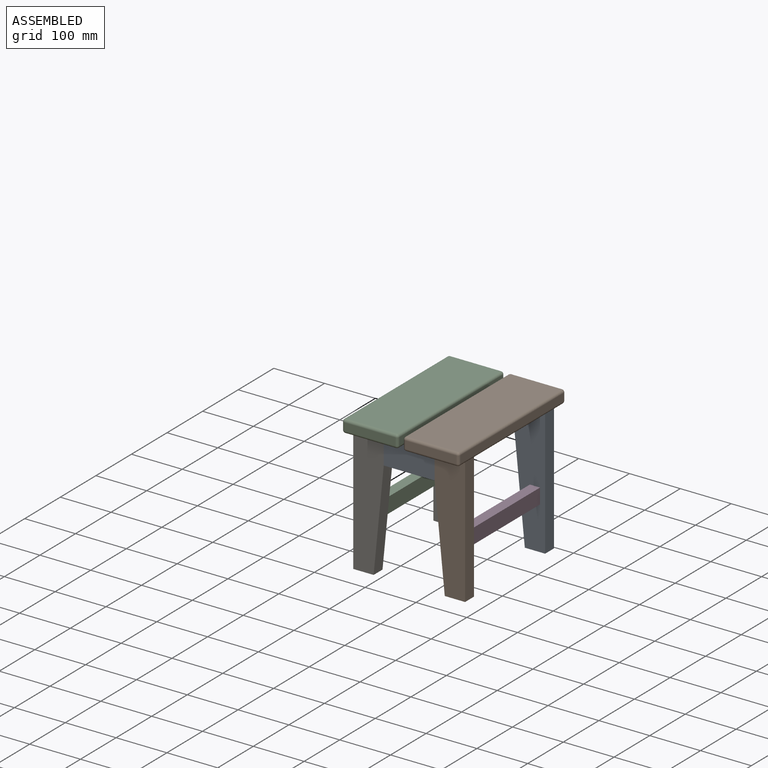
[diagram: assembled view]
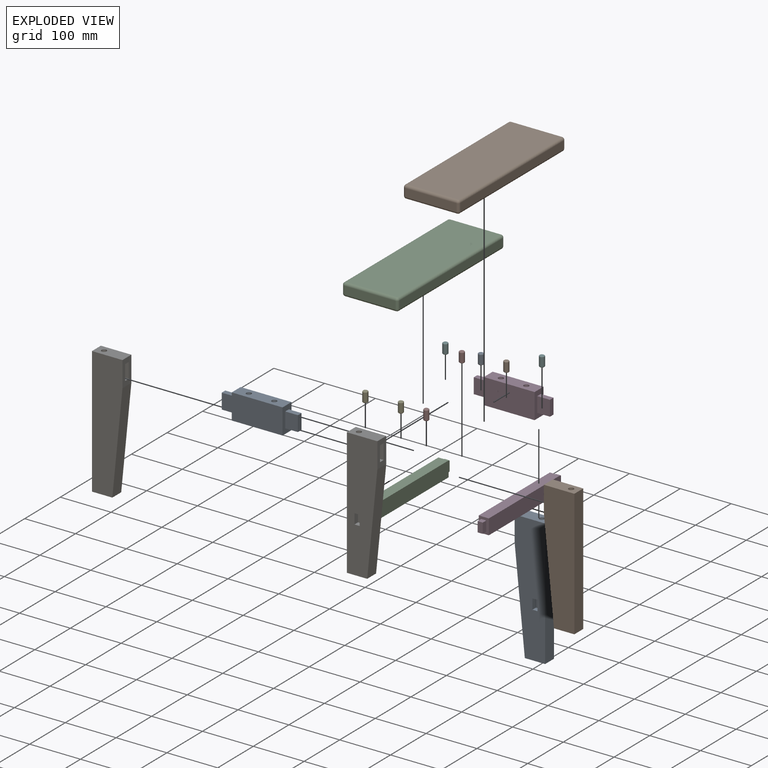
[diagram: exploded view]
GUIDED TOUR — MATED ASSEMBLY (Onshape document c06469b7a6e83e6855e82bc1, AutoMate assembly c06469b7a6e83e6855e82bc1_748e14a80728a21f4de388cd_3eecdcf9ad7407634e84c29d_default)

This assembly has 18 components, labeled P0..P17 below (a component is one placed occurrence of a part; the same part can appear more than once), held together by 17 mates. A mate is a constraint between two components; its type names the relative motion it leaves free:
  FASTENED — locks the two components together rigidly (no relative motion).
Axis/direction vectors are unit vectors and 'through' points are millimeter coordinates, both in the assembly's world frame.

MATES
  1. FASTENED "Fastened 2": P1 <-> P8, direction (-1.000, 0.000, 0.000) through (154.11, -98.02, 280.82) mm
  2. FASTENED "Fastened 5": P10 <-> P14, direction (0.000, -1.000, 0.000) through (14.11, -95.52, 155.82) mm
  3. FASTENED "Fastened 15": P13 <-> P16, direction (0.000, 0.000, 1.000) through (199.11, 126.98, 305.82) mm
  4. FASTENED "Fastened 17": P17 <-> P8, direction (0.000, 0.000, -1.000) through (129.11, -98.02, 305.82) mm
  5. FASTENED "Fastened 13": P0 <-> P11, direction (0.000, 0.000, 1.000) through (79.11, 126.98, 305.82) mm
  6. FASTENED "Fastened 7": P11 <-> P6, direction (-1.000, 0.000, 0.000) through (54.11, 126.98, 280.82) mm
  7. FASTENED "Fastened 8": P7 <-> P1, direction (0.000, 0.000, 1.000) through (199.11, -98.02, 305.82) mm
  8. FASTENED "Fastened 6": P6 <-> P10, direction (0.000, -1.000, 0.000) through (14.11, 124.48, 155.82) mm
  9. FASTENED "Fastened 12": P5 <-> P6, direction (0.000, 0.000, 1.000) through (9.11, 126.98, 305.82) mm
  10. FASTENED "Fastened 10": P4 <-> P8, direction (0.000, 0.000, 1.000) through (79.11, -98.02, 305.82) mm
  11. FASTENED "Fastened 16": P2 <-> P14, direction (0.000, 0.000, -1.000) through (9.11, -98.02, 305.82) mm
  12. FASTENED "Fastened 11": P12 <-> P14, direction (0.000, 0.000, 1.000) through (9.11, -98.02, 305.82) mm
  13. FASTENED "Fastened 4": P16 <-> P3, direction (0.000, -1.000, 0.000) through (194.11, 124.48, 155.82) mm
  14. FASTENED "Fastened 9": P15 <-> P8, direction (0.000, 0.000, 1.000) through (129.11, -98.02, 305.82) mm
  15. FASTENED "Fastened 3": P14 <-> P8, direction (1.000, 0.000, 0.000) through (54.11, -98.02, 280.82) mm
  16. FASTENED "Fastened 14": P9 <-> P11, direction (0.000, 0.000, 1.000) through (129.11, 126.98, 305.82) mm
  17. FASTENED "Fastened 1": P3 <-> P1, direction (0.000, -1.000, 0.000) through (194.11, -95.52, 155.82) mm

ASSEMBLY ORDER
  1. P10 — the base component [order verified]
  2. P6 [order verified]
  3. P9 [order verified]
  4. P11 [order verified]
  5. P0 [order verified]
  6. P5 [order verified]
  7. P3 [order verified]
  8. P7 [order verified]
  9. P14 [order verified]
  10. P17 [order verified]
  11. P2 [order verified]
  12. P16 [order verified]
  13. P15 [order verified]
  14. P4 [order verified]
  15. P8 [order verified]
  16. P1 [order verified]
  17. P12 [order verified]
  18. P13 [order verified]
(P0, P1, P5, P6 verified with a relaxed clearance tolerance: the source model stores slight part interference there.)
Order-tag legend:
  [order verified] — this step's position reverses a verified removal order: the component was checked to insert without passing through the ones already placed.

Of the 18 components, 10 carry the full construction recipe — the FeatureScript program that regenerates the part's solid from scratch; the rest are supplied as boundary geometry only.
Because this assembly has more than 12 components, the tour below covers the 12 most significant ones individually (every recipe-attached component first, then the largest by part volume), in assembly order; the remaining 6 are summarized together in a grouped section at the end.
Each toured component is shown spotlighted twice — in the assembled view, then in the exploded view, where a leader line traces a displaced component back to its assembled socket (saturated green if recipe-attached, orange if geometry-only; every other component desaturated gray) — followed by its recipe or geometry summary and the mates that hold it.
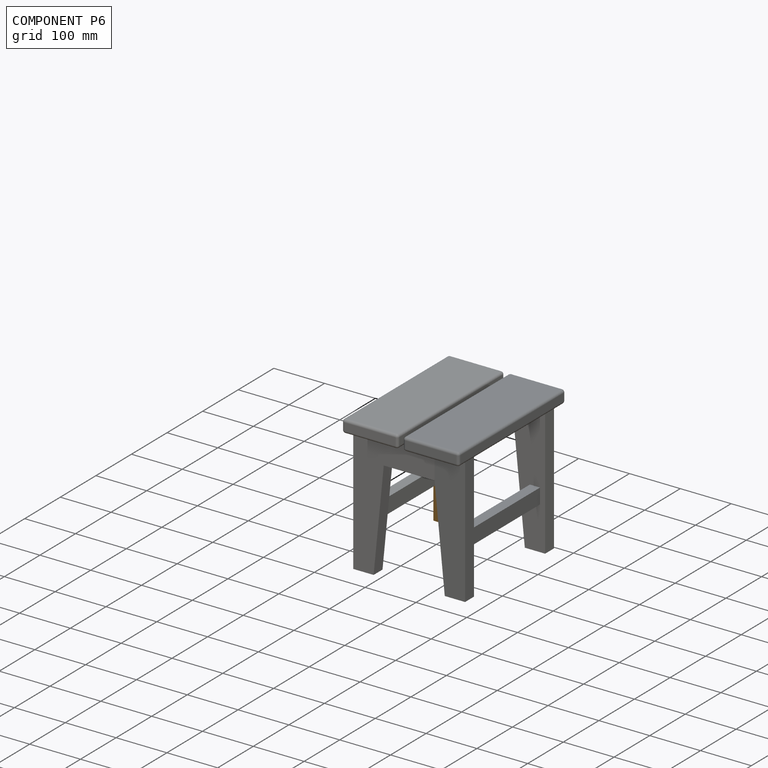
[diagram: component P6 — assembled]
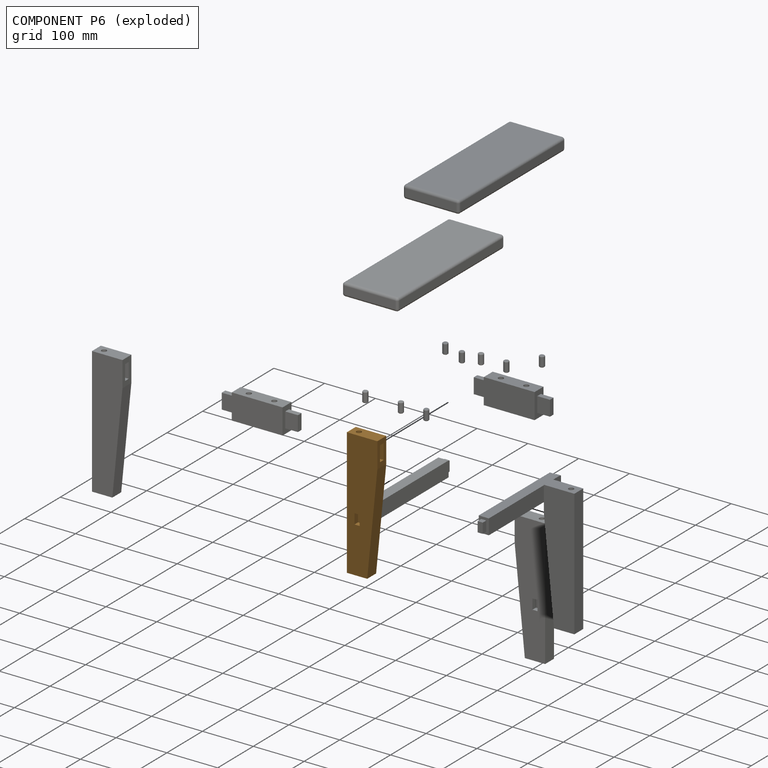
[diagram: component P6 — exploded]
COMPONENT P6 — geometry summary (no construction recipe available for this part):
  bounding box: 250.0 x 60.0 x 25.0 mm
  B-rep topology: 1 solid, 19 faces, 84 edges
  volume: 313537 mm^3 (84% of its bounding box)
Held by: FASTENED mate "Fastened 7" to P11; FASTENED mate "Fastened 6" to P10; FASTENED mate "Fastened 12" to P5.
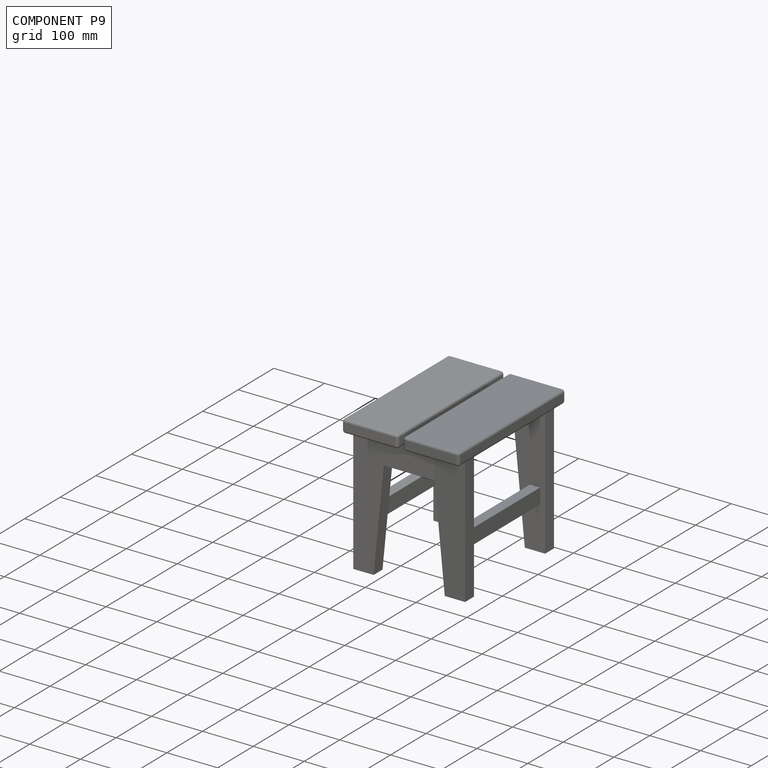
[diagram: component P9 — assembled]
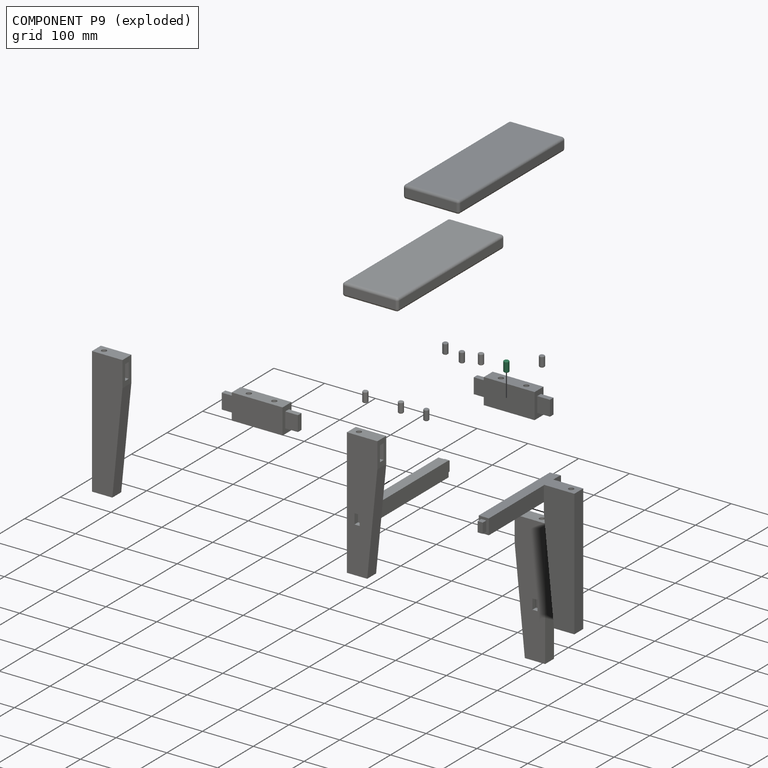
[diagram: component P9 — exploded]
COMPONENT P9 — same part as P0 (CADFS 00318984); its construction recipe is shown at P0.
Held by: FASTENED mate "Fastened 14" to P11.
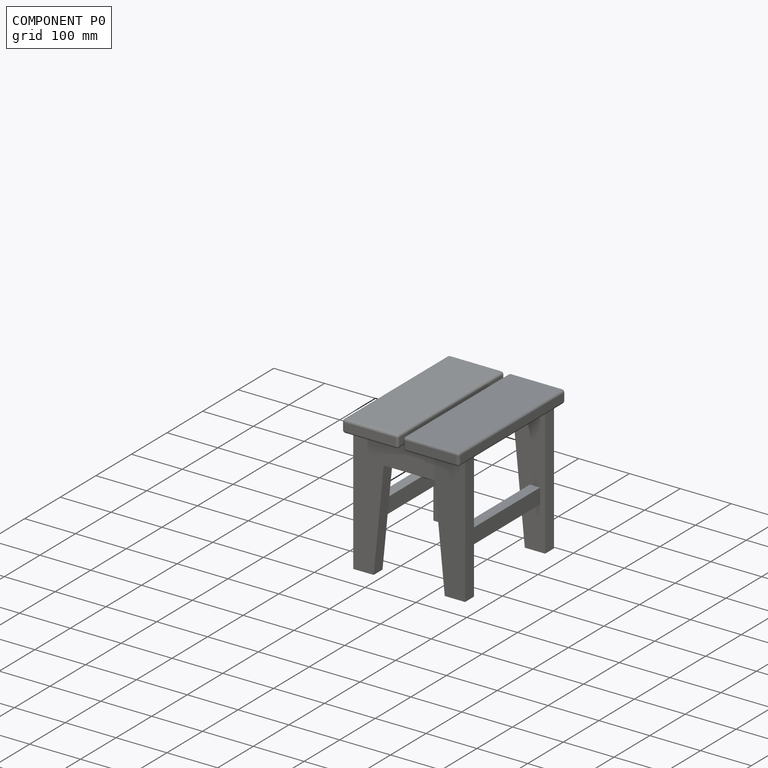
[diagram: component P0 — assembled]
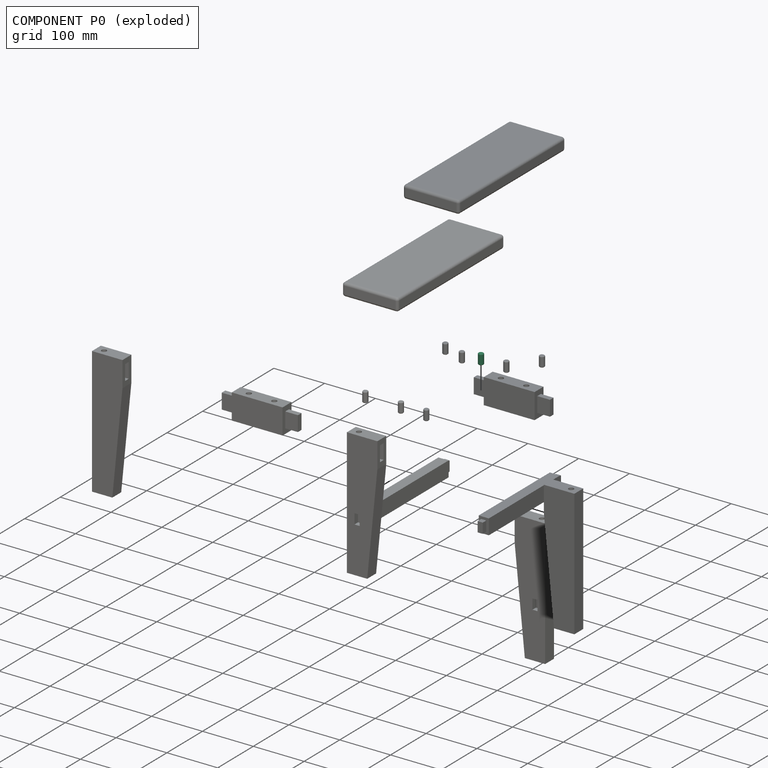
[diagram: component P0 — exploded]
COMPONENT P0 — recipe-attached (CADFS 00318984, mesh-verified: the recipe's output STEP matches this component's geometry to below the mesh-comparison resolution (tessellation chordal tolerance ~0.0367 mm)).
Held by: FASTENED mate "Fastened 13" to P11.
Construction recipe (FeatureScript — the CAD program that rebuilds this solid; sketch coordinates are in the units given by the * unit suffixes, e.g. mm):

FeatureScript 1511;
import(path : "onshape/std/geometry.fs", version : "1511.0");
import(path : "onshape/std/common.fs", version : "1511.0");
const mm = millimeter;
const VERTEX = EntityType.VERTEX;
const EDGE = EntityType.EDGE;
const FACE = EntityType.FACE;
const BODY = EntityType.BODY;
function v(x, y){return vector(x, y);}
function OD(order){return orderDisambiguation(order);}
function OSD(set){return originalSetDisambiguation(set);}
function TD(topology){return topologyDisambiguation(topology);}
function TDD(query){return trueDependencyDisambiguation(query);}
function sQuery(a, b, c) {return sketchEntityQuery(a, b, c);}

annotation { "Feature Type Name" : "Feature", "Feature Type Description" : "" }
export const myFeature = defineFeature(function(context is Context, id is Id, definition is map)
    precondition{}
    {
        {
            var Q0;
            Q0=qCreatedBy(makeId("Top.planeOp"),FACE);
            var sketch = newSketch(context, id + "F0", { "sketchPlane" : qUnion([Q0])});
            skCircle(sketch, "E0", {"center": v(0, 0) * mm, "radius": 5 * mm});
            skSolve(sketch);
        }
        {
            var Q0;
            Q0 = qSketchRegion(id + "F0", true);
            extrude(context, id + "F1", {"entities" : qUnion([Q0]), "oppositeDirection" : true, "depth" : 20 * mm});
        }
        {
            var Q0;
            Q0=makeQuery(id+"F1.opExtrude","CAP_EDGE",EDGE,{"disambiguationData":[OSD([sQuery(id+"F0.wireOp",EDGE,"E0")])],"isStart":false});
            chamfer(context, id + "F2", {"entities" : qUnion([Q0]), "width" : 1 * mm, "tangentPropagation" : true});
        }
        {
            var Q0;
            Q0=makeQuery(id+"F1.opExtrude","CAP_FACE",FACE,{"disambiguationData":[OSD([sQuery(id+"F0.wireOp",EDGE,"E0")])],"isStart":true});
            chamfer(context, id + "F3", {"entities" : qUnion([Q0]), "width" : 1 * mm, "tangentPropagation" : true});
        }
    });
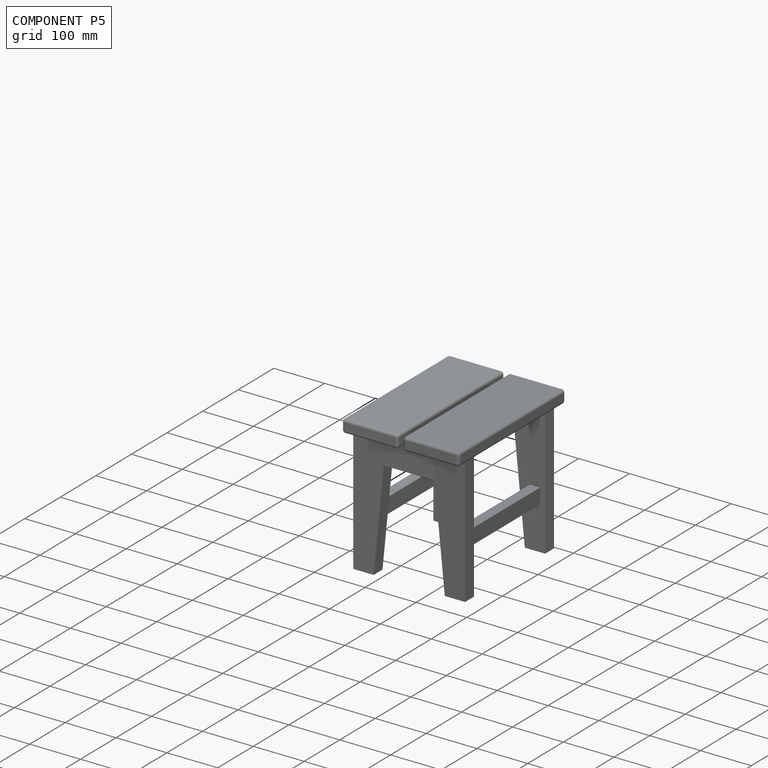
[diagram: component P5 — assembled]
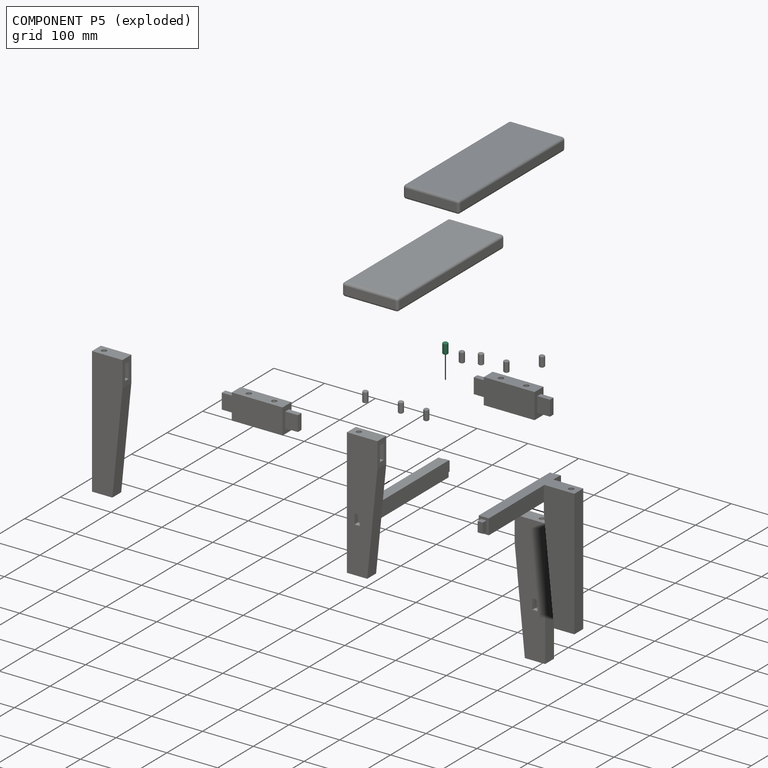
[diagram: component P5 — exploded]
COMPONENT P5 — same part as P0 (CADFS 00318984); its construction recipe is shown at P0.
Held by: FASTENED mate "Fastened 12" to P6.
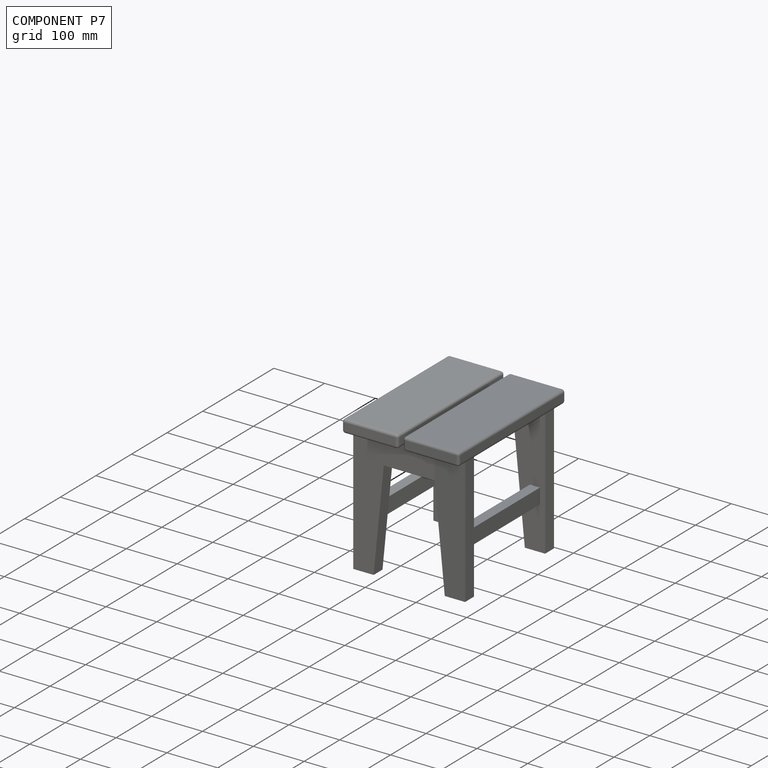
[diagram: component P7 — assembled]
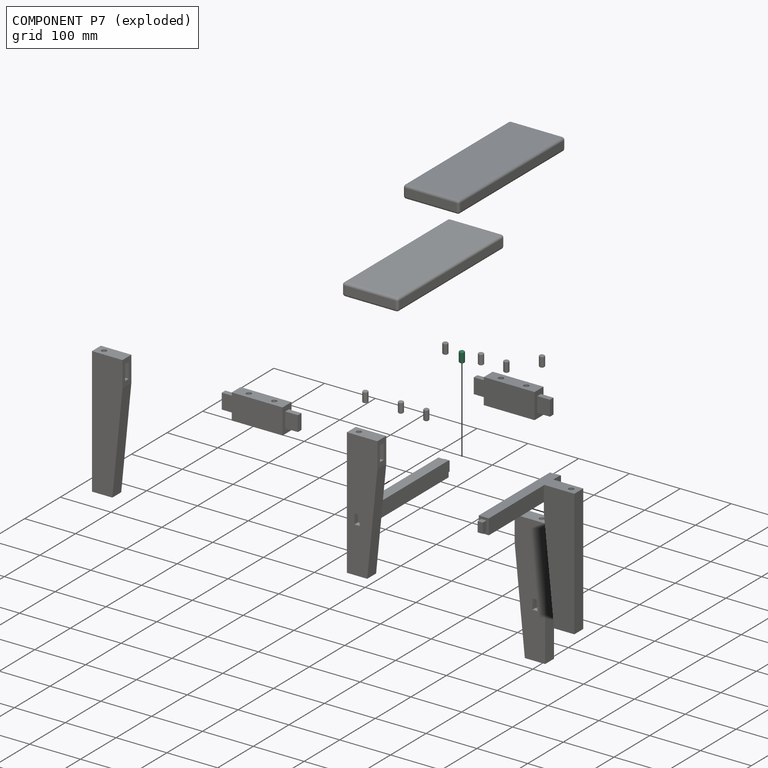
[diagram: component P7 — exploded]
COMPONENT P7 — same part as P0 (CADFS 00318984); its construction recipe is shown at P0.
Held by: FASTENED mate "Fastened 8" to P1.
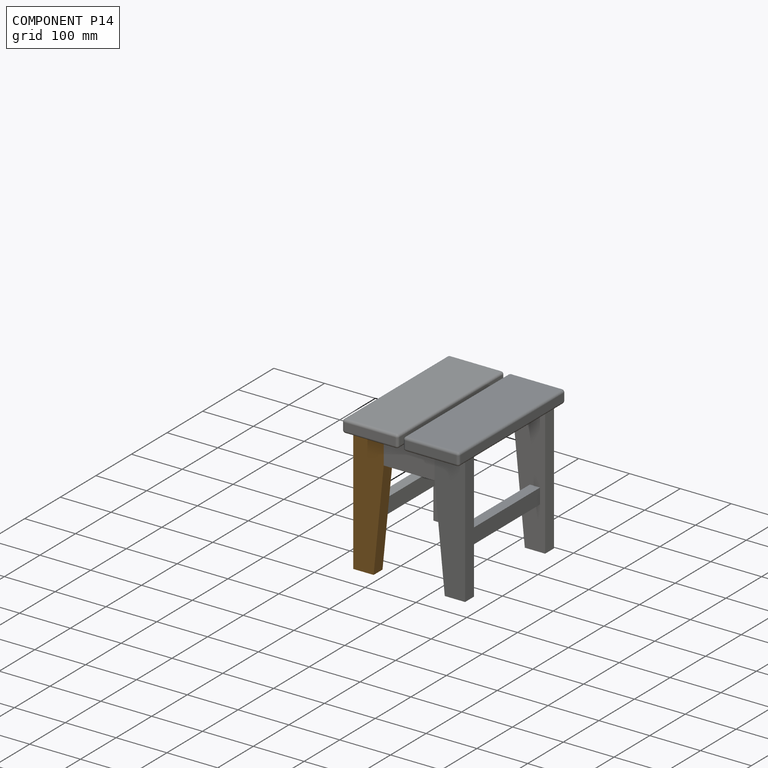
[diagram: component P14 — assembled]
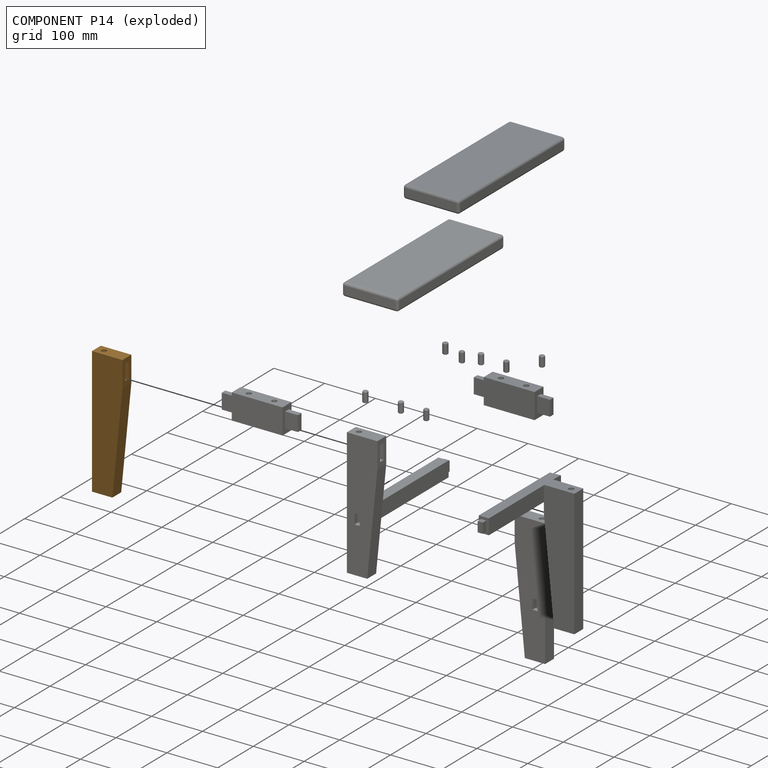
[diagram: component P14 — exploded]
COMPONENT P14 — geometry summary (no construction recipe available for this part):
  bounding box: 250.0 x 60.0 x 25.0 mm
  B-rep topology: 1 solid, 19 faces, 84 edges
  volume: 313537 mm^3 (84% of its bounding box)
Held by: FASTENED mate "Fastened 5" to P10; FASTENED mate "Fastened 16" to P2; FASTENED mate "Fastened 11" to P12; FASTENED mate "Fastened 3" to P8.
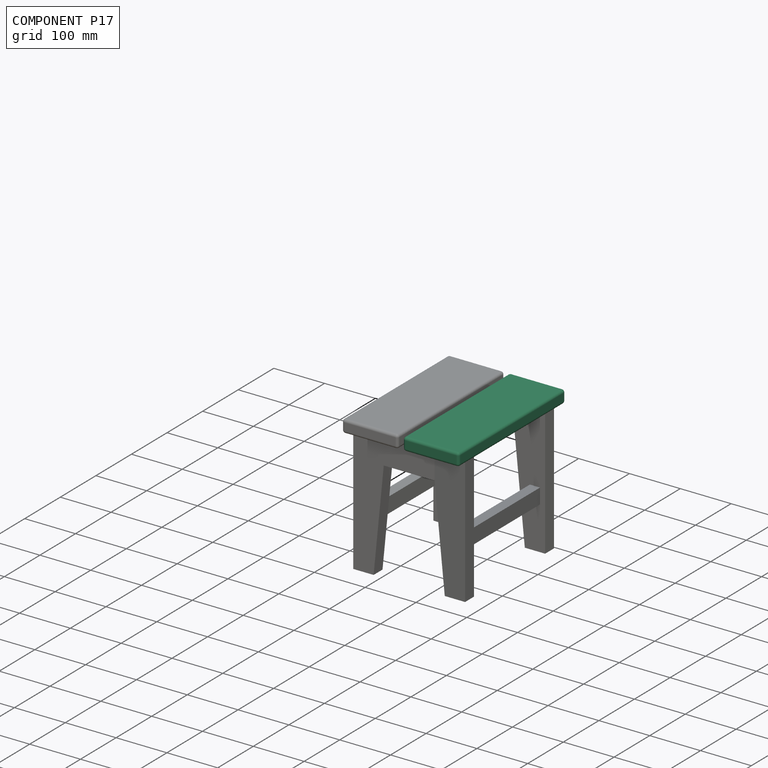
[diagram: component P17 — assembled]
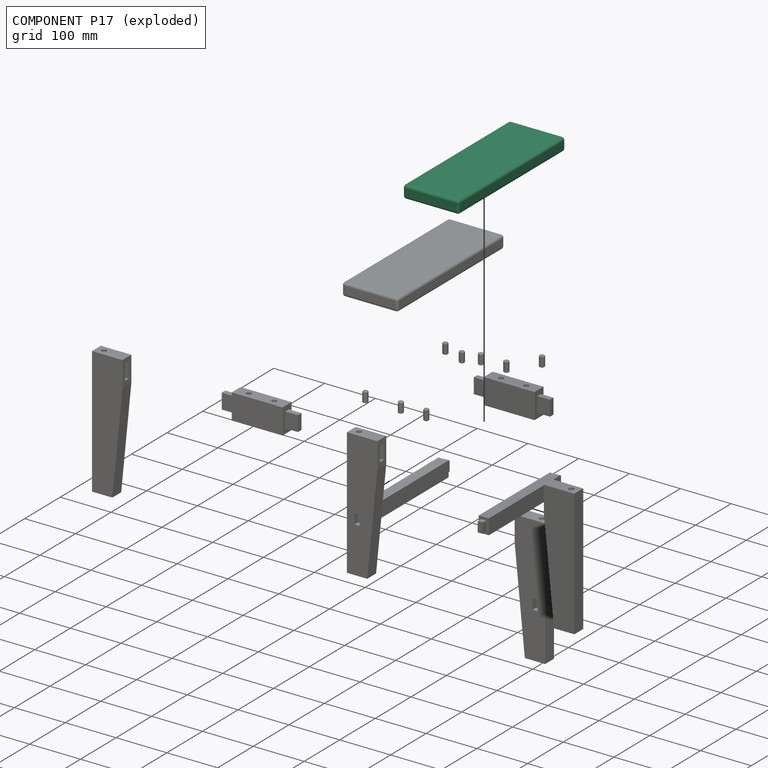
[diagram: component P17 — exploded]
COMPONENT P17 — same part as P2 (CADFS 00318974); its construction recipe is shown at P2.
Held by: FASTENED mate "Fastened 17" to P8.
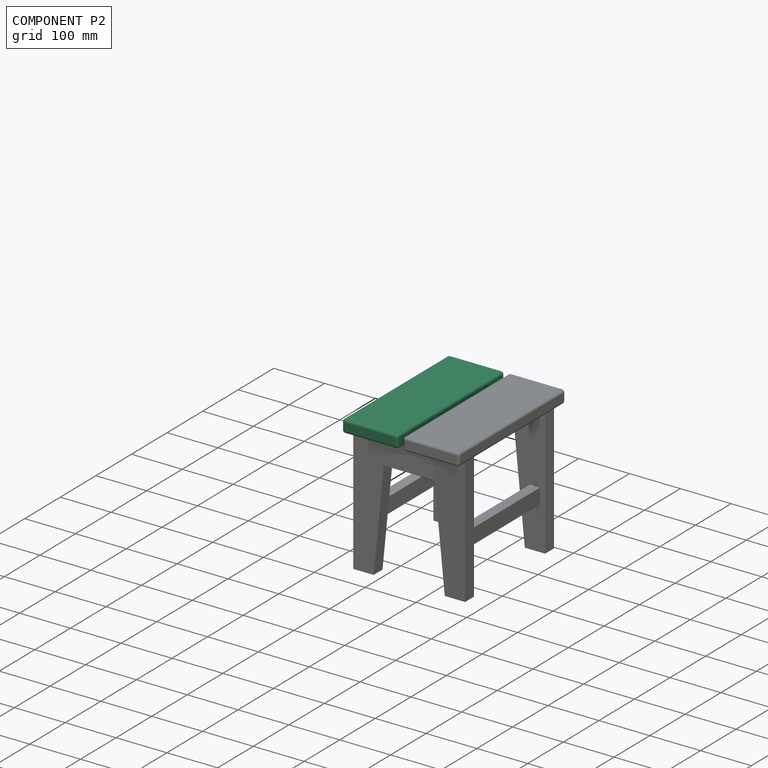
[diagram: component P2 — assembled]
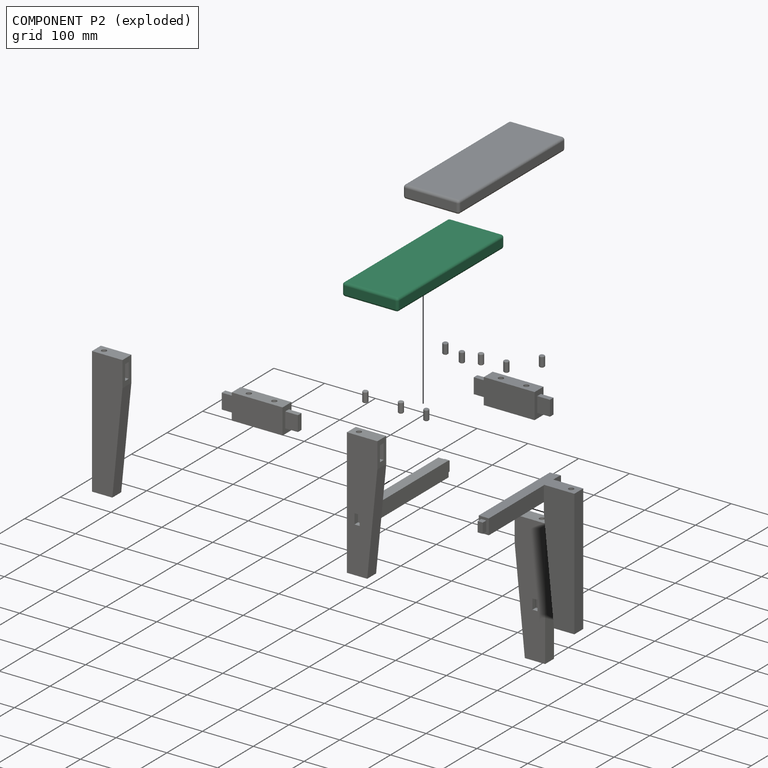
[diagram: component P2 — exploded]
COMPONENT P2 — recipe-attached (CADFS 00318974, mesh-verified: the recipe's output STEP matches this component's geometry to below the mesh-comparison resolution (tessellation chordal tolerance ~0.481 mm)).
Held by: FASTENED mate "Fastened 16" to P14.
Construction recipe (FeatureScript — the CAD program that rebuilds this solid; sketch coordinates are in the units given by the * unit suffixes, e.g. mm):

FeatureScript 1511;
import(path : "onshape/std/geometry.fs", version : "1511.0");
import(path : "onshape/std/common.fs", version : "1511.0");
const mm = millimeter;
const VERTEX = EntityType.VERTEX;
const EDGE = EntityType.EDGE;
const FACE = EntityType.FACE;
const BODY = EntityType.BODY;
function v(x, y){return vector(x, y);}
function OD(order){return orderDisambiguation(order);}
function OSD(set){return originalSetDisambiguation(set);}
function TD(topology){return topologyDisambiguation(topology);}
function TDD(query){return trueDependencyDisambiguation(query);}
function sQuery(a, b, c) {return sketchEntityQuery(a, b, c);}

annotation { "Feature Type Name" : "Feature", "Feature Type Description" : "" }
export const myFeature = defineFeature(function(context is Context, id is Id, definition is map)
    precondition{}
    {
        {
            var Q0;
            Q0=qCreatedBy(makeId("Top.planeOp"),FACE);
            var sketch = newSketch(context, id + "F0", { "sketchPlane" : qUnion([Q0])});
            skLineSegment(sketch, "E0.bottom", {"start": v(0, 0) * mm, "end": v(-300, 0) * mm});
            skLineSegment(sketch, "E0.top", {"start": v(0, 110) * mm, "end": v(-300, 110) * mm});
            skLineSegment(sketch, "E0.left", {"start": v(0, 0) * mm, "end": v(0, 110) * mm});
            skLineSegment(sketch, "E0.right", {"start": v(-300, 0) * mm, "end": v(-300, 110) * mm});
            skSolve(sketch);
        }
        {
            var Q0;
            Q0 = qSketchRegion(id + "F0", true);
            extrude(context, id + "F1", {"entities" : qUnion([Q0]), "depth" : 25 * mm});
        }
        {
            var Q0;
            Q0=makeQuery(id+"F1.opExtrude","CAP_FACE",FACE,{"disambiguationData":[OSD([sQuery(id+"F0.wireOp",EDGE,"E0.bottom"),sQuery(id+"F0.wireOp",EDGE,"E0.top"),sQuery(id+"F0.wireOp",EDGE,"E0.left"),sQuery(id+"F0.wireOp",EDGE,"E0.right")])],"isStart":false});
            var sketch = newSketch(context, id + "F2", { "sketchPlane" : qUnion([Q0])});
            skLineSegment(sketch, "E1", {"start": v(-300, 90) * mm, "end": v(-262.5, 90) * mm, "construction": true});
            skLineSegment(sketch, "E2", {"start": v(-262.5, 90) * mm, "end": v(-262.5, 110) * mm, "construction": true});
            skPoint(sketch, "E3.startSnap0", {"position": v(-150, 110) * mm});
            skPoint(sketch, "E3.endSnap0", {"position": v(-150, 0) * mm});
            skLineSegment(sketch, "E4", {"start": v(0, 55) * mm, "end": v(-339.05, 55) * mm, "construction": true});
            skPoint(sketch, "E4.endSnap0", {"position": v(0, 55) * mm});
            skCircle(sketch, "E5", {"center": v(-262.5, 90) * mm, "radius": 5 * mm});
            skCircle(sketch, "E6.MirrorC", {"center": v(-262.5, 20) * mm, "radius": 5 * mm});
            skLineSegment(sketch, "E7.MirrorCS", {"start": v(-150, -43.45) * mm, "end": v(-150, 152.33) * mm, "construction": true});
            skCircle(sketch, "E8.MirrorC", {"center": v(-37.5, 90) * mm, "radius": 5 * mm});
            skCircle(sketch, "E9.MirrorC", {"center": v(-37.5, 20) * mm, "radius": 5 * mm});
            skSolve(sketch);
        }
        {
            var Q0;
            Q0 = qSketchRegion(id + "F2", true);
            extrude(context, id + "F3", {"entities" : qUnion([Q0]), "operationType" : NewBodyOperationType.REMOVE, "oppositeDirection" : true, "depth" : 12 * mm});
        }
        {
            var Q0;
            Q0=makeQuery(id+"F1.opExtrude","SWEPT_FACE",FACE,{"disambiguationData":[OSD([sQuery(id+"F0.wireOp",EDGE,"E0.top")])]});
            var Q1;
            Q1=makeQuery(id+"F1.opExtrude","SWEPT_FACE",FACE,{"disambiguationData":[OSD([sQuery(id+"F0.wireOp",EDGE,"E0.right")])]});
            var Q2;
            Q2=makeQuery(id+"F1.opExtrude","SWEPT_FACE",FACE,{"disambiguationData":[OSD([sQuery(id+"F0.wireOp",EDGE,"E0.bottom")])]});
            var Q3;
            Q3=makeQuery(id+"F1.opExtrude","SWEPT_FACE",FACE,{"disambiguationData":[OSD([sQuery(id+"F0.wireOp",EDGE,"E0.left")])]});
            fillet(context, id + "F4", {"entities" : qUnion([Q0, Q1, Q2, Q3]), "radius" : 5 * mm, "tangentPropagation" : true, "allowEdgeOverflow" : false});
        }
    });
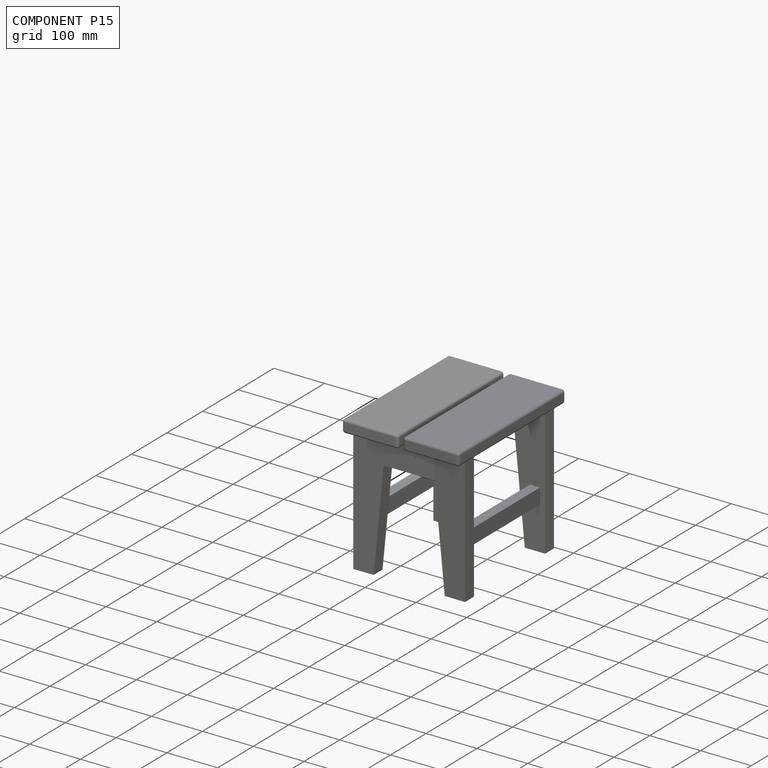
[diagram: component P15 — assembled]
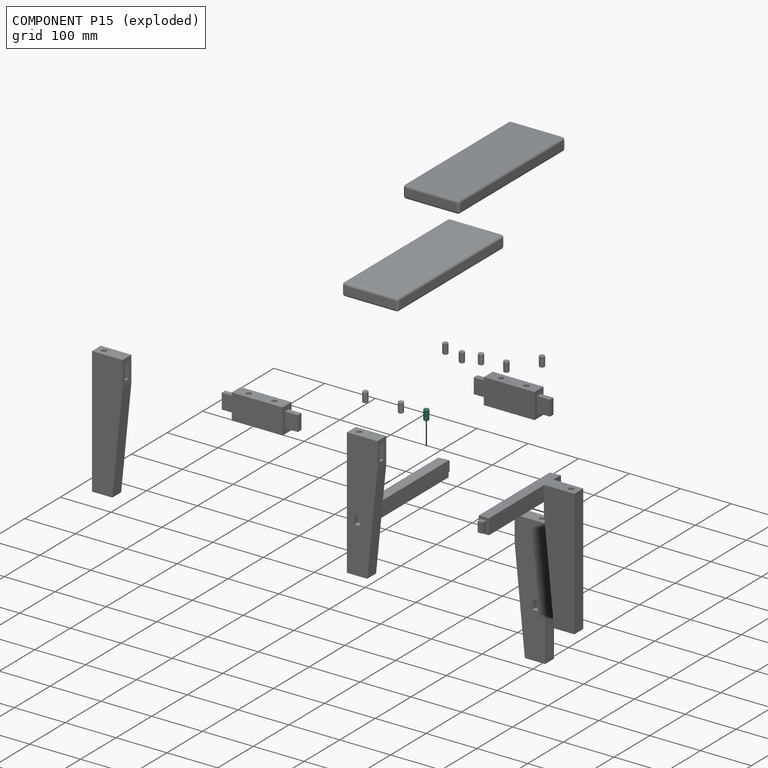
[diagram: component P15 — exploded]
COMPONENT P15 — same part as P0 (CADFS 00318984); its construction recipe is shown at P0.
Held by: FASTENED mate "Fastened 9" to P8.
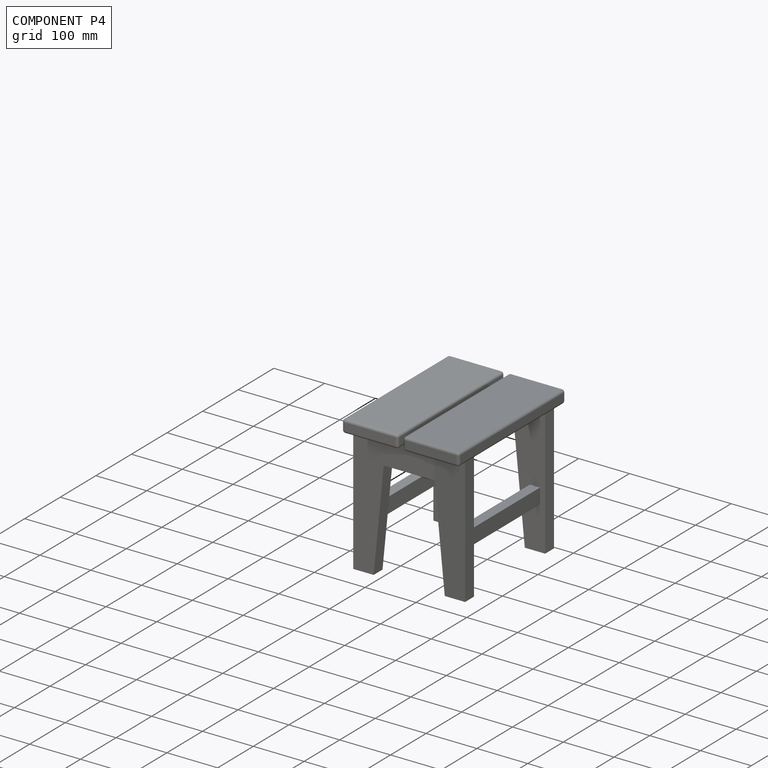
[diagram: component P4 — assembled]
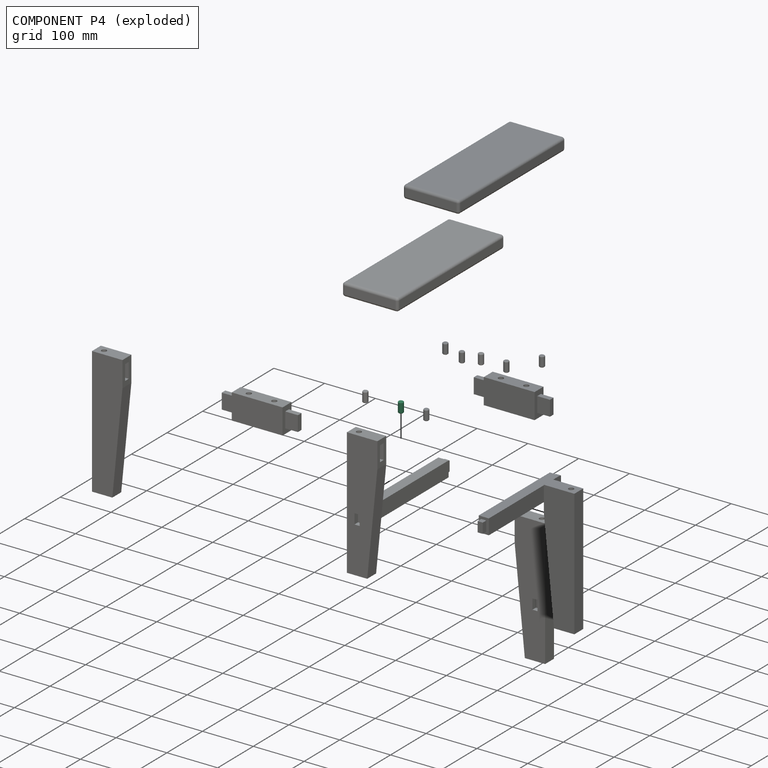
[diagram: component P4 — exploded]
COMPONENT P4 — same part as P0 (CADFS 00318984); its construction recipe is shown at P0.
Held by: FASTENED mate "Fastened 10" to P8.
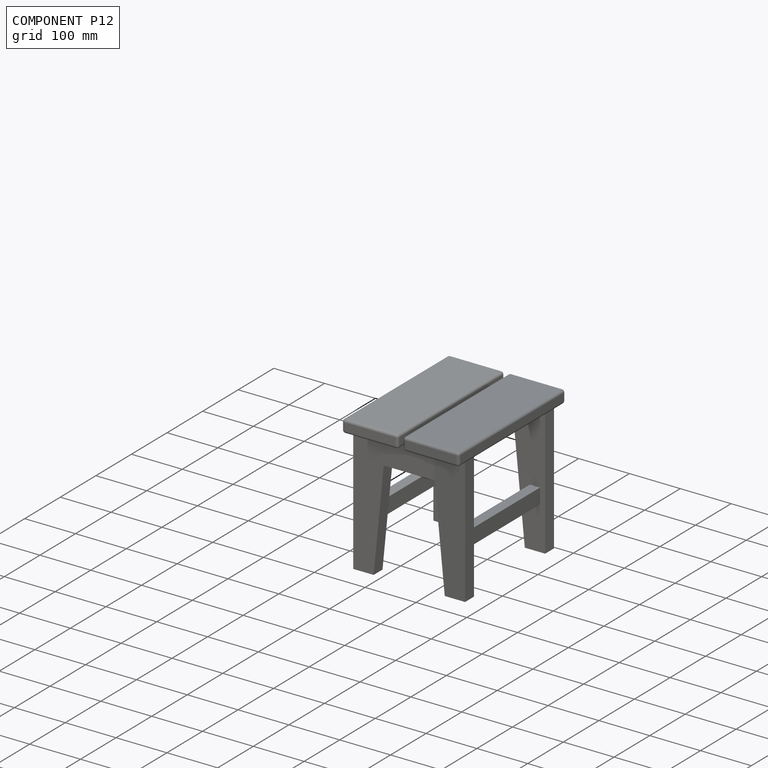
[diagram: component P12 — assembled]
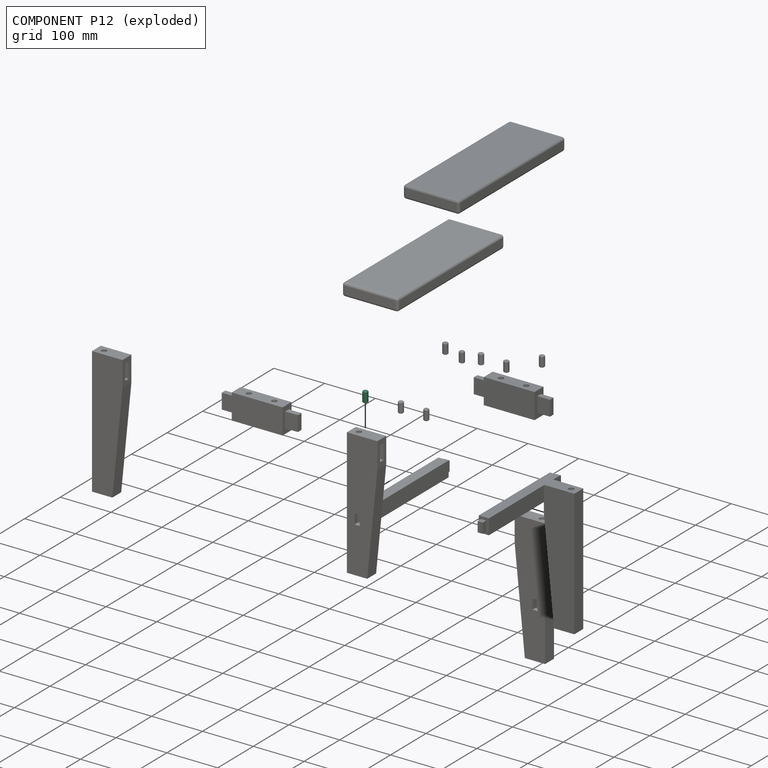
[diagram: component P12 — exploded]
COMPONENT P12 — same part as P0 (CADFS 00318984); its construction recipe is shown at P0.
Held by: FASTENED mate "Fastened 11" to P14.
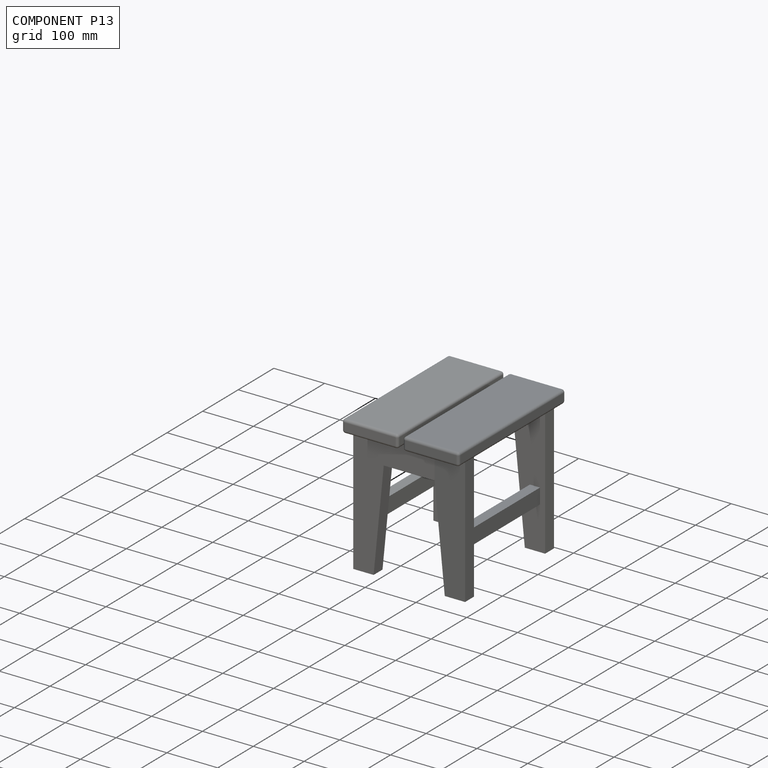
[diagram: component P13 — assembled]
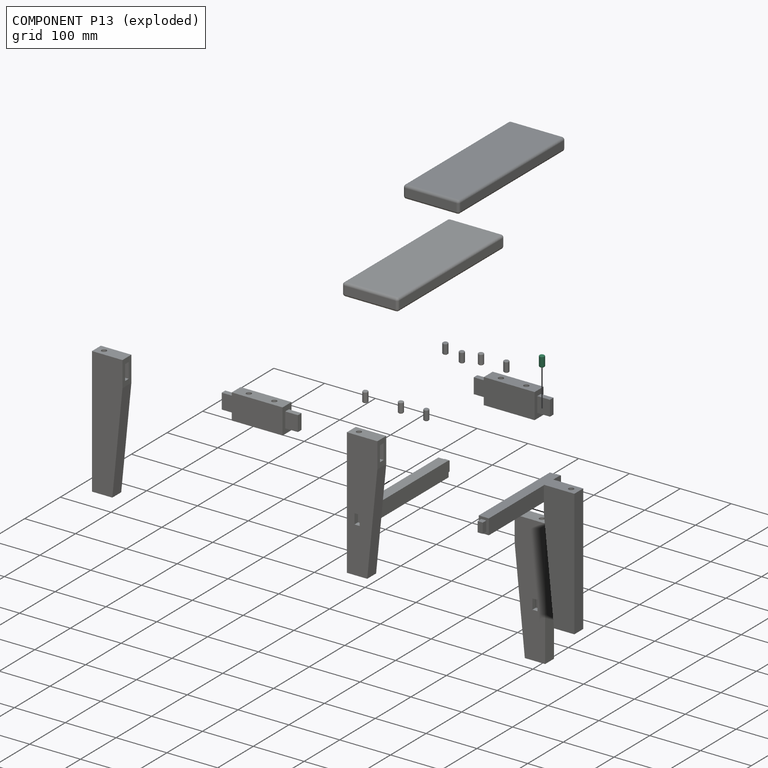
[diagram: component P13 — exploded]
COMPONENT P13 — same part as P0 (CADFS 00318984); its construction recipe is shown at P0.
Held by: FASTENED mate "Fastened 15" to P16.
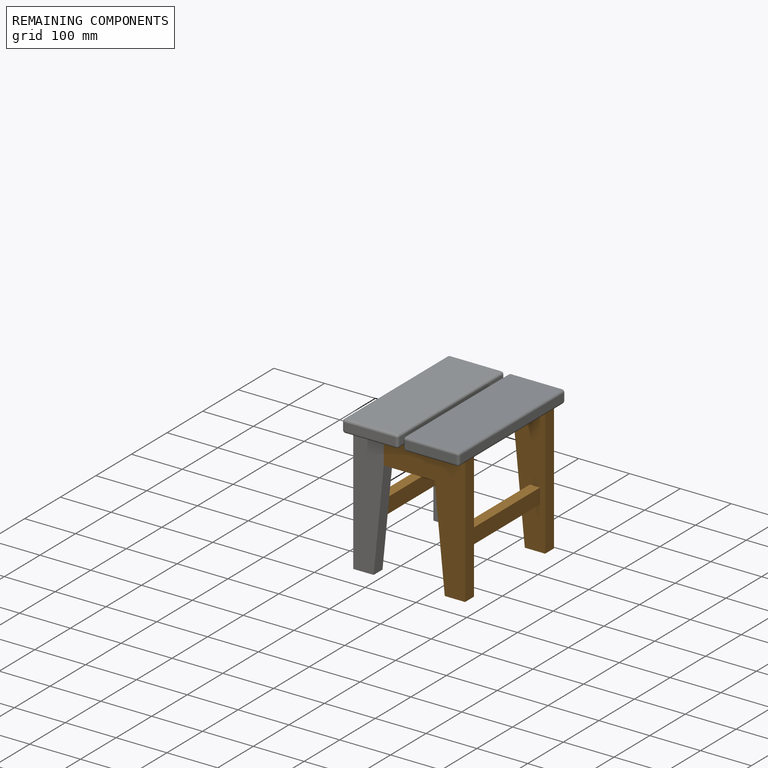
[diagram: remaining components — assembled]
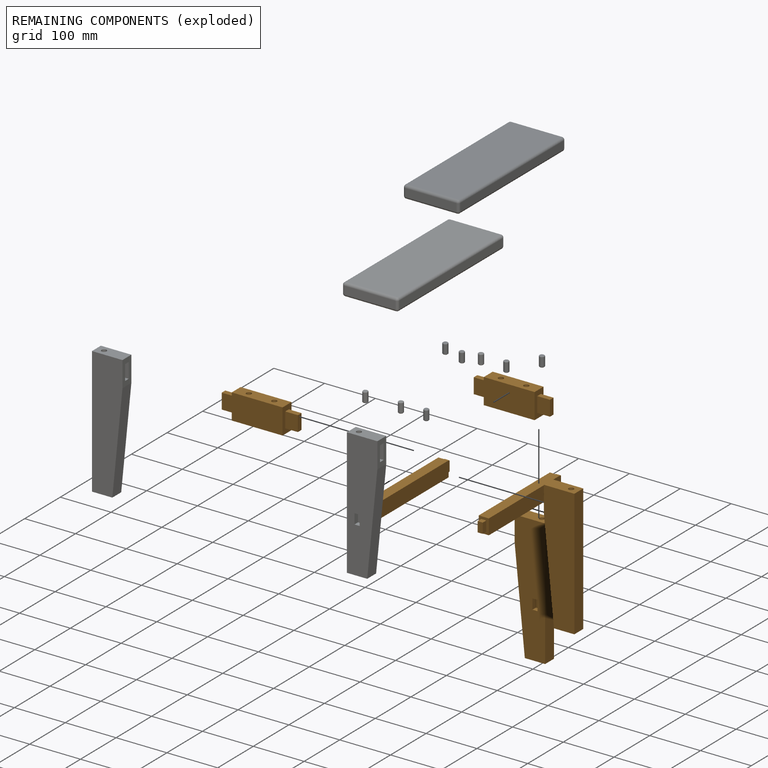
[diagram: remaining components — exploded]
REMAINING COMPONENTS (grouped) — the 6 components below fall outside the per-component tour by the significance rule stated above; both spotlight views highlight the whole group.
  P10: bounding box 220.0 x 30.0 x 20.0 mm, volume 124000 mm^3. Held by: FASTENED mate "Fastened 5" to P14; FASTENED mate "Fastened 6" to P6.
  P11: bounding box 150.0 x 50.0 x 25.0 mm, volume 136073 mm^3. Held by: FASTENED mate "Fastened 13" to P0; FASTENED mate "Fastened 7" to P6; FASTENED mate "Fastened 14" to P9.
  P3: bounding box 220.0 x 30.0 x 20.0 mm, volume 124000 mm^3. Held by: FASTENED mate "Fastened 4" to P16; FASTENED mate "Fastened 1" to P1.
  P16: bounding box 250.0 x 60.0 x 25.0 mm, volume 313537 mm^3. Held by: FASTENED mate "Fastened 15" to P13; FASTENED mate "Fastened 4" to P3.
  P8: bounding box 150.0 x 50.0 x 25.0 mm, volume 136073 mm^3. Held by: FASTENED mate "Fastened 2" to P1; FASTENED mate "Fastened 17" to P17; FASTENED mate "Fastened 10" to P4; FASTENED mate "Fastened 9" to P15; FASTENED mate "Fastened 3" to P14.
  P1: bounding box 250.0 x 60.0 x 25.0 mm, volume 313537 mm^3. Held by: FASTENED mate "Fastened 2" to P8; FASTENED mate "Fastened 8" to P7; FASTENED mate "Fastened 1" to P3.
PROVENANCE & LICENSES
Assembly (occurrences, transforms, mates, per-part STEP geometry): AutoMate dataset, Zenodo record 7776208, CC0.
Construction recipes: CADFS (HuggingFace VladPyatov/CADFS, CC-BY-4.0, layered over the ABC dataset), FeatureScript reconstruction programs keyed by ABC model id.
Join: ABC meta listings map ABC model id -> Onshape documentId; within a shared document, parts are matched by geometric signature (bounding-box dims + volume at 0.1% relative tolerance, exact B-rep face/solid counts).
Verification: 10 of this assembly's 18 components carry a recipe attachment, and every attachment is mesh-verified: the CADFS STEP and the AutoMate member STEP were compared as meshes in their shared local frame (symmetric sampled-point-to-mesh distance); worst across the 10 attachments: below the mesh-comparison resolution (tessellation chordal tolerance ~0.481 mm) on a 321 mm part.
Renders: orthographic iso camera (az 35 / el 25); the floor grid conveys scale (grid pitch printed in each image; no ruler). In the exploded view each component is displaced by its stored offset vector: the offsets alone carry the explosion direction (mate normal/axis signs are not orientation cues and do not encode it), and separation distances are assigned per mate-chain, not proportionally to assembly-order depth.
